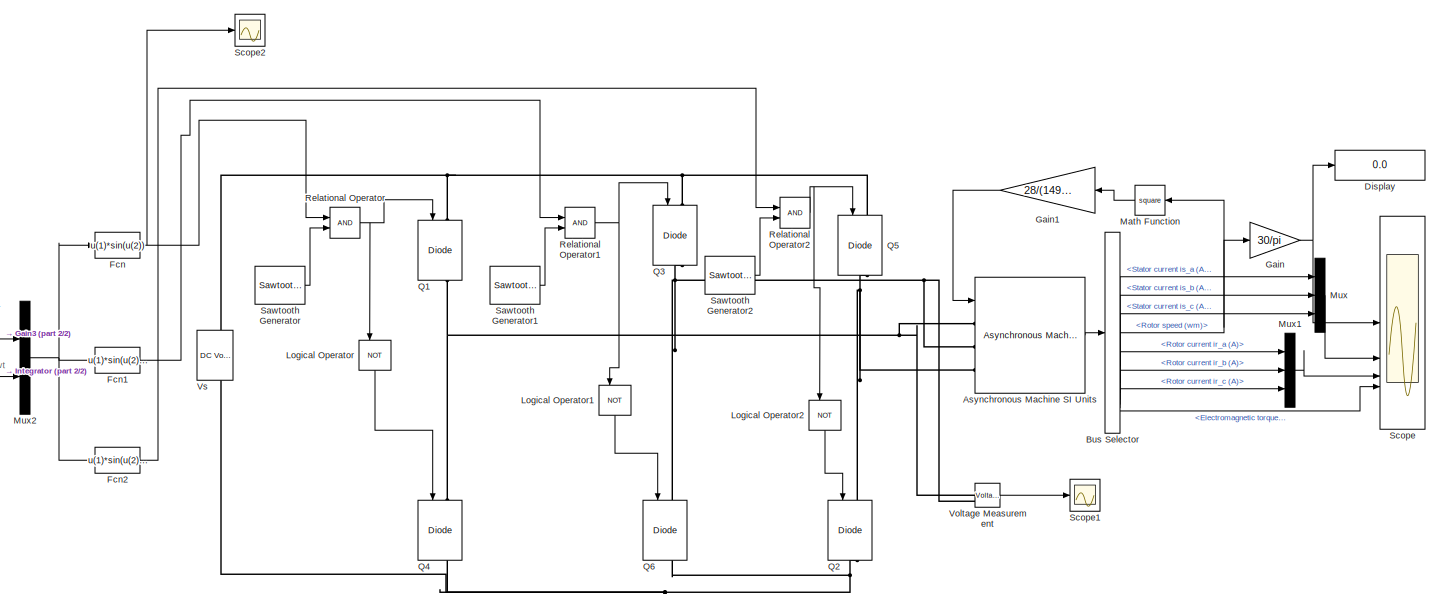
[diagram: root canvas - part 1/2, most of the canvas]
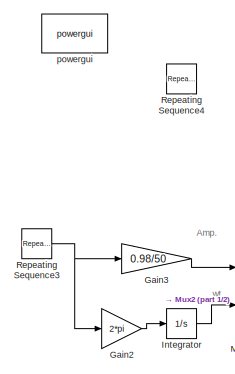
[diagram: root canvas - part 2/2, middle left region]
MODEL slx_3762417832e7
KIND model
CONFIG AbsTol = auto
CONFIG EnableMultiTasking = on
CONFIG FixedStep = auto
CONFIG MaxStep = 1e-4
CONFIG MinStep = auto
CONFIG RelTol = 1e-3
CONFIG SampleTimeConstraint = Unconstrained
CONFIG SolverName = ode23tb
CONFIG StartTime = 0.0
CONFIG StopTime = 5
BLOCK [Reference] Asynchronous Machine SI Units  REF=spsAsynchronousMachineSIUnitsLib/Asynchronous Machine
SI Units
  AttributesFormatString = \n
  LibrarySourceBlock = sps_lib/Electrical Machines/Asynchronous Machine\nSI Units
  SourceBlock = spsAsynchronousMachineSIUnitsLib/Asynchronous Machine\nSI Units
  SourceType = Asynchronous Machine
BLOCK [BusSelector] Bus Selector
  OutputSignals = Mechanical.Rotor speed (wm),Stator measurements.Stator current is_a (A),Stator measurements.Stator current is_b (A),Stator measurements.Stator current is_c (A),Rotor measurements.Rotor current ir_a (A),Rotor measurements.Rotor current ir_b (A),Rotor measurements.Rotor current ir_c (A),Mechanical.Electromagnetic torque Te (N*m)
BLOCK [Display] Display
  Decimation = 1
BLOCK [Fcn] Fcn
  Expr = u(1)*sin(u(2))
BLOCK [Fcn] Fcn1
  Expr = u(1)*sin(u(2)-(2*pi/3))
BLOCK [Fcn] Fcn2
  Expr = u(1)*sin(u(2)+(2*pi/3))
BLOCK [Gain] Gain
  Gain = 30/pi
BLOCK [Gain] Gain1
  Gain = 28/(149)^2
  NameLocation = top
BLOCK [Gain] Gain2
  Gain = 2*pi
BLOCK [Gain] Gain3
  Gain = 0.98/50
BLOCK [Integrator] Integrator
BLOCK [Logic] Logical Operator
  AllPortsSameDT = off
  NameLocation = left
  Operator = NOT
  OutDataTypeStr = boolean
BLOCK [Logic] Logical Operator1
  AllPortsSameDT = off
  NameLocation = left
  Operator = NOT
  OutDataTypeStr = boolean
BLOCK [Logic] Logical Operator2
  AllPortsSameDT = off
  NameLocation = left
  Operator = NOT
  OutDataTypeStr = boolean
BLOCK [Math] Math Function
  NameLocation = top
  Operator = square
  SignedPower = on
BLOCK [Mux] Mux
  DisplayOption = bar
  Inputs = 3
BLOCK [Mux] Mux1
  DisplayOption = bar
  Inputs = 3
BLOCK [Mux] Mux2
  DisplayOption = bar
  Inputs = 2
BLOCK [Reference] Q1  REF=spsIGBTDiodeLib/IGBT//Diode
  LibrarySourceBlock = sps_lib/Power Electronics/IGBT//Diode
  NameLocation = left
  SourceBlock = spsIGBTDiodeLib/IGBT//Diode
  SourceType = IGBT/Diode
BLOCK [Reference] Q2  REF=spsIGBTDiodeLib/IGBT//Diode
  LibrarySourceBlock = sps_lib/Power Electronics/IGBT//Diode
  NameLocation = left
  SourceBlock = spsIGBTDiodeLib/IGBT//Diode
  SourceType = IGBT/Diode
BLOCK [Reference] Q3  REF=spsIGBTDiodeLib/IGBT//Diode
  LibrarySourceBlock = sps_lib/Power Electronics/IGBT//Diode
  NameLocation = left
  SourceBlock = spsIGBTDiodeLib/IGBT//Diode
  SourceType = IGBT/Diode
BLOCK [Reference] Q4  REF=spsIGBTDiodeLib/IGBT//Diode
  LibrarySourceBlock = sps_lib/Power Electronics/IGBT//Diode
  NameLocation = left
  SourceBlock = spsIGBTDiodeLib/IGBT//Diode
  SourceType = IGBT/Diode
BLOCK [Reference] Q5  REF=spsIGBTDiodeLib/IGBT//Diode
  LibrarySourceBlock = sps_lib/Power Electronics/IGBT//Diode
  NameLocation = left
  SourceBlock = spsIGBTDiodeLib/IGBT//Diode
  SourceType = IGBT/Diode
BLOCK [Reference] Q6  REF=spsIGBTDiodeLib/IGBT//Diode
  LibrarySourceBlock = sps_lib/Power Electronics/IGBT//Diode
  NameLocation = left
  SourceBlock = spsIGBTDiodeLib/IGBT//Diode
  SourceType = IGBT/Diode
BLOCK [RelationalOperator] Relational Operator
  InputSameDT = off
  OutDataTypeStr = boolean
BLOCK [RelationalOperator] Relational Operator1
  InputSameDT = off
  OutDataTypeStr = boolean
BLOCK [RelationalOperator] Relational Operator2
  InputSameDT = off
  OutDataTypeStr = boolean
BLOCK [Reference] Repeating Sequence3  REF=simulink/Sources/Repeating
Sequence
  SourceBlock = simulink/Sources/Repeating\nSequence
  SourceType = Repeating table
BLOCK [Reference] Repeating Sequence4  REF=simulink/Sources/Repeating
Sequence
  SourceBlock = simulink/Sources/Repeating\nSequence
  SourceType = Repeating table
BLOCK [Reference] Sawtooth Generator  REF=spsSawtoothGeneratorLib/Sawtooth
Generator
  LibrarySourceBlock = sps_lib/Sources/Signal Generator Sources/Sawtooth\nGenerator
  SourceBlock = spsSawtoothGeneratorLib/Sawtooth\nGenerator
  SourceType = Sawtooth Generator
BLOCK [Reference] Sawtooth Generator1  REF=spsSawtoothGeneratorLib/Sawtooth
Generator
  LibrarySourceBlock = sps_lib/Sources/Signal Generator Sources/Sawtooth\nGenerator
  SourceBlock = spsSawtoothGeneratorLib/Sawtooth\nGenerator
  SourceType = Sawtooth Generator
BLOCK [Reference] Sawtooth Generator2  REF=spsSawtoothGeneratorLib/Sawtooth
Generator
  LibrarySourceBlock = sps_lib/Sources/Signal Generator Sources/Sawtooth\nGenerator
  SourceBlock = spsSawtoothGeneratorLib/Sawtooth\nGenerator
  SourceType = Sawtooth Generator
BLOCK [Scope] Scope
  Floating = off
  NumInputPorts = 4
  ScopeSpecificationString = Simulink.scopes.TimeScopeBlockCfg('CurrentConfiguration', extmgr.ConfigurationSet(extmgr.Configuration('Core','General UI',true),extmgr.Configuration('Core','Source UI',true),extmgr.Configuration('Sources','WiredSimulink',true,'DataLoggingSaveFormat','Array','DataLoggingDecimation','1','DataLoggingDecimateData',true),extmgr.Configuration('Visuals','Time Domain',true,'SerializedDisplays',{struct('M...<+4277ch>
BLOCK [Scope] Scope1
  Floating = off
  NumInputPorts = 1
  ScopeSpecificationString = C++SS(StrPVP('Location','[1, 49, 1367, 727]'),StrPVP('Open','off'),StrPVP('ZoomMode','xonly'),MxPVP('AxesTitles',54,'struct(''axes1'',''%<SignalLabel>'')'),MxPVP('ScopeGraphics',57,'struct(''FigureColor'',''[0.5 0.5 0.5]'',''AxesColor'',''[0 0 0]'',''AxesTickColor'',''[1 1 1]'',''LineColors'',''[1 1 0;1 0 1;0 1 1;1 0 0;0 1 0;0 0 1]'',''LineStyles'',''-|-|-|-|-|-'',''LineWidths'',''[0.5 0.5 0.5 0.5...<+277ch>
BLOCK [Scope] Scope2
  Floating = off
  NumInputPorts = 1
  ScopeSpecificationString = C++SS(StrPVP('Location','[1, 49, 1367, 727]'),StrPVP('Open','off'),StrPVP('ZoomMode','xonly'),MxPVP('AxesTitles',54,'struct(''axes1'',''%<SignalLabel>'')'),MxPVP('ScopeGraphics',57,'struct(''FigureColor'',''[0.5 0.5 0.5]'',''AxesColor'',''[0 0 0]'',''AxesTickColor'',''[1 1 1]'',''LineColors'',''[1 1 0;1 0 1;0 1 1;1 0 0;0 1 0;0 0 1]'',''LineStyles'',''-|-|-|-|-|-'',''LineWidths'',''[0.5 0.5 0.5 0.5...<+277ch>
BLOCK [Reference] Voltage Measurement  REF=spsVoltageMeasurementLib/Voltage Measurement
  LibrarySourceBlock = sps_lib/Sensors and Measurements/Voltage Measurement
  SourceBlock = spsVoltageMeasurementLib/Voltage Measurement
  SourceType = Voltage Measurement
  UserDataPersistent = on
BLOCK [Reference] Vs  REF=spsDCVoltageSourceLib/DC Voltage Source
  LibrarySourceBlock = sps_lib/Sources/DC Voltage Source
  NameLocation = right
  SourceBlock = spsDCVoltageSourceLib/DC Voltage Source
  SourceType = DC Voltage Source
BLOCK [Reference] powergui  REF=sps_lib/powergui
  LibrarySourceBlock = sps_lib/powergui
  Priority = 1
  SourceBlock = sps_lib/powergui
  SourceType = PSB option menu block
ANNOTATION (root): Amp.
ANNOTATION (root): wt
LINE Asynchronous Machine SI Units:1 -> Bus Selector:1
NET Bus Selector:1 -> Gain:1, Math Function:1
LINE Bus Selector:2 -> Mux:1
LINE Bus Selector:3 -> Mux:2
LINE Bus Selector:4 -> Mux:3
LINE Bus Selector:5 -> Mux1:1
LINE Bus Selector:6 -> Mux1:2
LINE Bus Selector:7 -> Mux1:3
LINE Bus Selector:8 -> Scope:4
LINE Fcn1:1 -> Relational Operator1:1
LINE Fcn2:1 -> Relational Operator2:1
NET Fcn:1 -> Relational Operator:1, Scope2:1
LINE Gain1:1 -> Asynchronous Machine SI Units:1
LINE Gain2:1 -> Integrator:1
LINE Gain3:1 -> Mux2:1
NET Gain:1 -> Display:1, Scope:1
LINE Integrator:1 -> Mux2:2
LINE Logical Operator1:1 -> Q6:1
LINE Logical Operator2:1 -> Q2:1
LINE Logical Operator:1 -> Q4:1
LINE Math Function:1 -> Gain1:1
LINE Mux1:1 -> Scope:3
NET Mux2:1 -> Fcn1:1, Fcn2:1, Fcn:1
LINE Mux:1 -> Scope:2
NET Relational Operator1:1 -> Logical Operator1:1, Q3:1
NET Relational Operator2:1 -> Logical Operator2:1, Q5:1
NET Relational Operator:1 -> Logical Operator:1, Q1:1
NET Repeating Sequence3:1 -> Gain2:1, Gain3:1
LINE Sawtooth Generator1:1 -> Relational Operator1:2
LINE Sawtooth Generator2:1 -> Relational Operator2:2
LINE Sawtooth Generator:1 -> Relational Operator:2
LINE Voltage Measurement:1 -> Scope1:1
PNET net1: Asynchronous Machine SI Units:LConn1 -- Q1:RConn1 -- Q4:LConn1 -- Voltage Measurement:LConn1
PNET net2: Asynchronous Machine SI Units:LConn2 -- Q3:RConn1 -- Q6:LConn1 -- Voltage Measurement:LConn2
PNET net3: Asynchronous Machine SI Units:LConn3 -- Q2:LConn1 -- Q5:RConn1
PNET net4: Q1:LConn1 -- Q3:LConn1 -- Q5:LConn1 -- Vs:RConn1
PNET net5: Q2:RConn1 -- Q4:RConn1 -- Q6:RConn1 -- Vs:LConn1
note: NET lines group one-source signal fan-out (src -> all destinations, sorted); 1:1 wires keep LINE; PNET lines group multi-terminal physical nets as a canonical sorted terminal list (undirected conserving connections); 2-terminal nets keep the pairwise PLINE form
